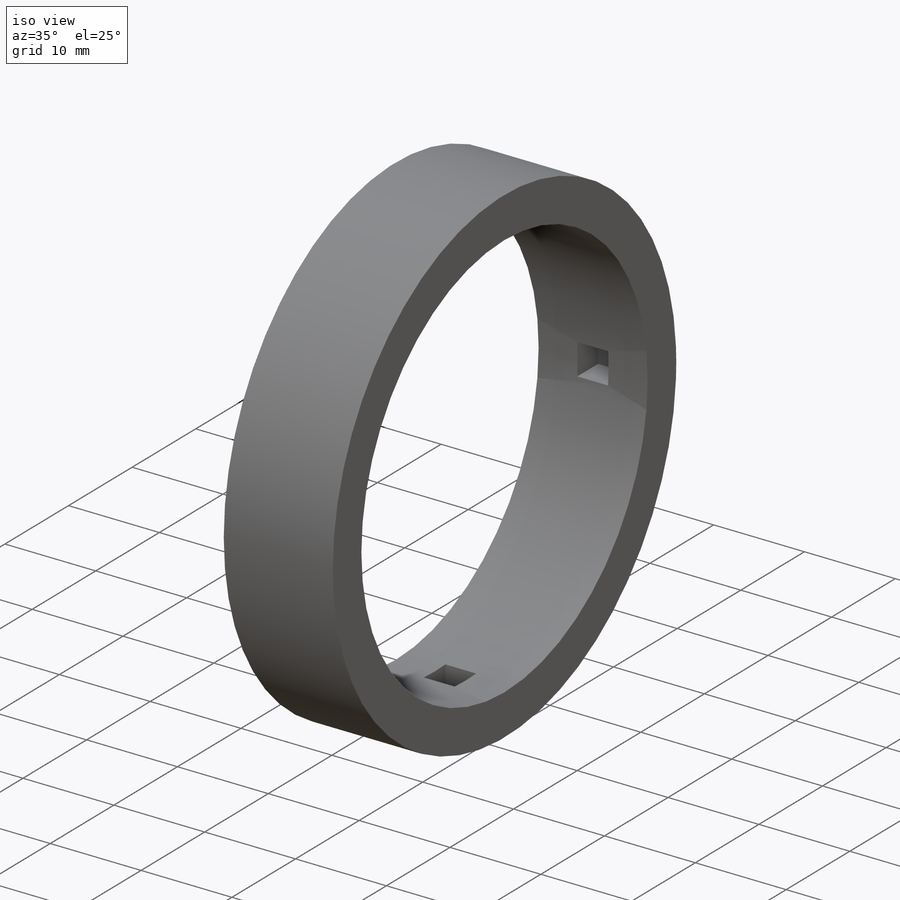
[diagram: iso view]
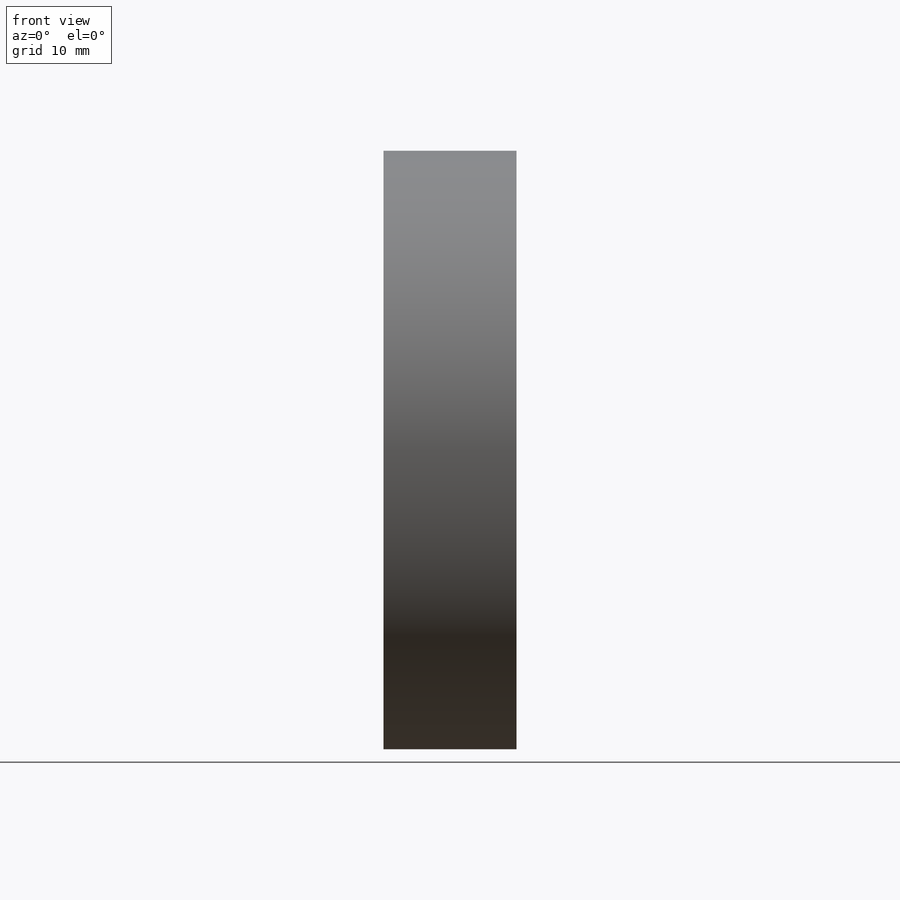
[diagram: front view]
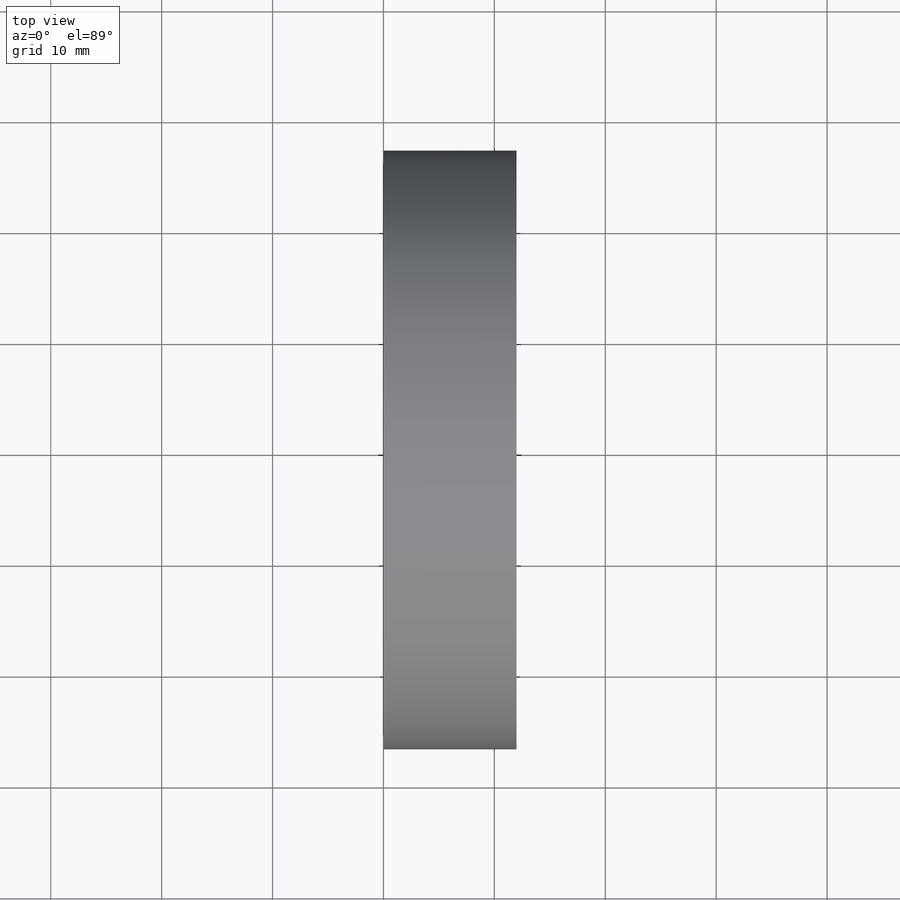
[diagram: top view]
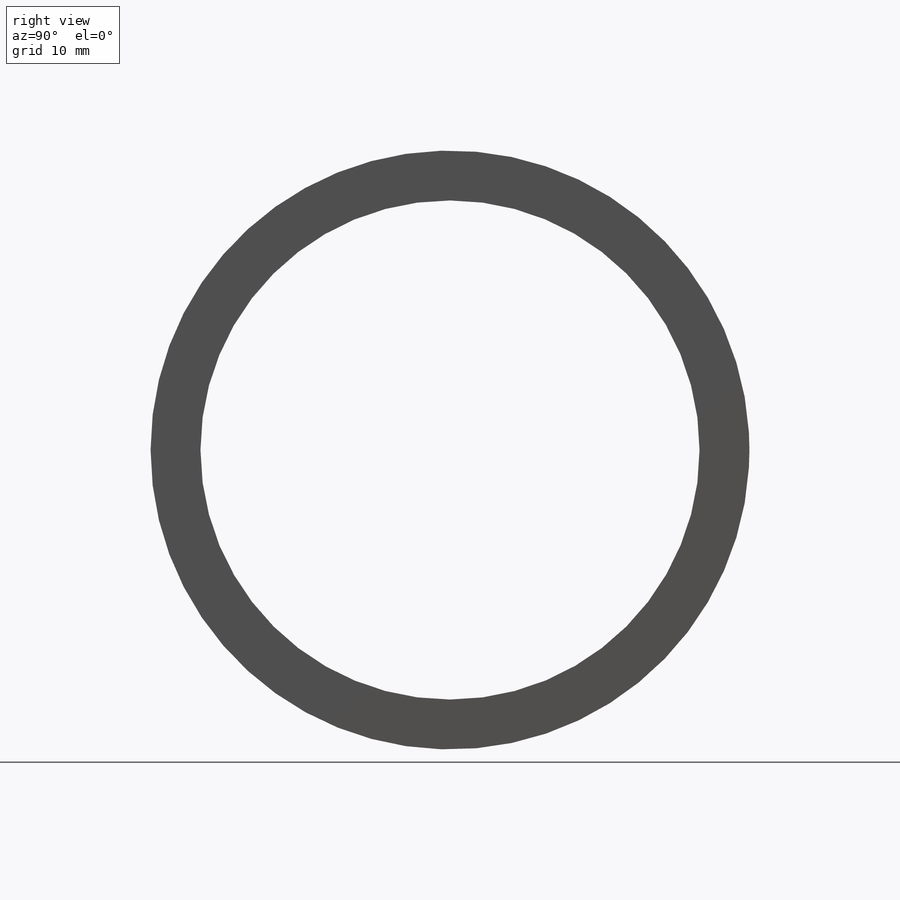
[diagram: right view]
SOLIDWORKS PART (.sldprt)
format: sldprt  version: not decoded by parser v0  size: 227,840 bytes
history: native  units: mm
features: sketch x6, cut_extrude x3, material x1, extrude x1, pattern_circular x1 (+12 scaffold rows collapsed)
feature tree (24):
  scaffold x12  (default folders/planes/origin — collapsed)
  material  "Material <not specified>"
  sketch  "Sketch1"  dims[D1=45.0mm D2=54.0mm]
  extrude  "Boss-Extrude1"  Depth=12mm
  sketch  "3DSketch1"  dims[c1.D1=6.0mm c1.D2=~7.25723mm c1.D3=~2.554545mm c2.D2=3.4mm c2.D3=~29.042594mm c3.D3=~27.80216mm c4.D3=25.7mm c4.D4=1.7mm c4.D5=0.0mm c4.D6=3.4mm]
  cut_extrude  "Cut-Extrude1"  Depth=1.7mm
  pattern_circular  "CirPattern1"  Count=4 Angle=360deg
  sketch  "3DSketch3"  dims[D1=6.0mm]
  sketch  "Sketch2"  dims[D1=~49.678031mm D2=~46.51548mm]
  sketch  "Sketch3"  dims[D1=50.0mm]
  cut_extrude  "Cut-Extrude4"  Depth=2mm
  sketch  "Sketch4"  dims[D1=~24.988282mm]
  cut_extrude  "Cut-Extrude5"  Depth=2mm
decode coverage: 11 of 11 modeling features carry decoded parameters
note: ~ marks probable driven/reference dimensions
note: suppression state not decoded; provenance and decode notes live in map.json
